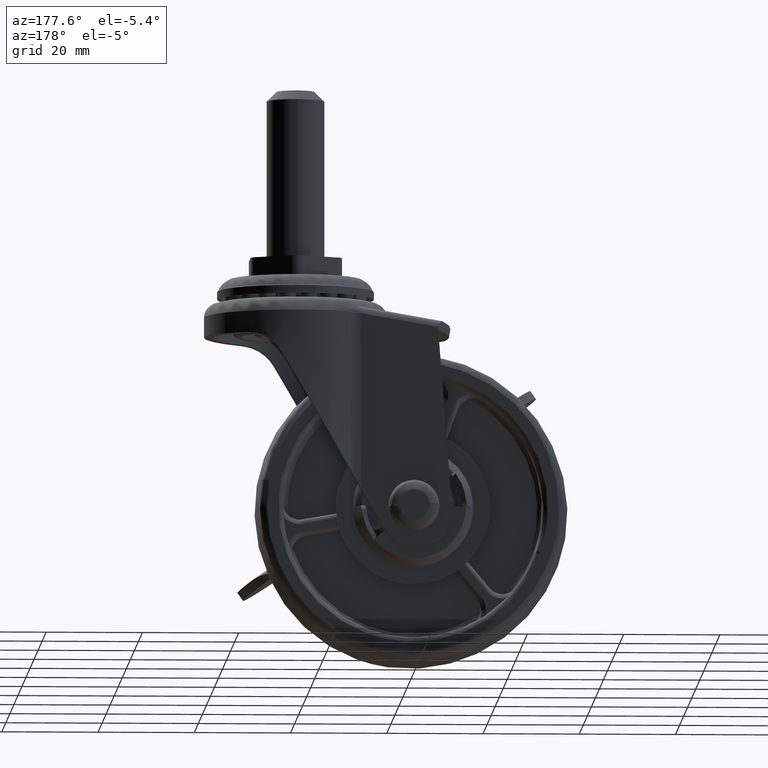
[diagram: clean part render]
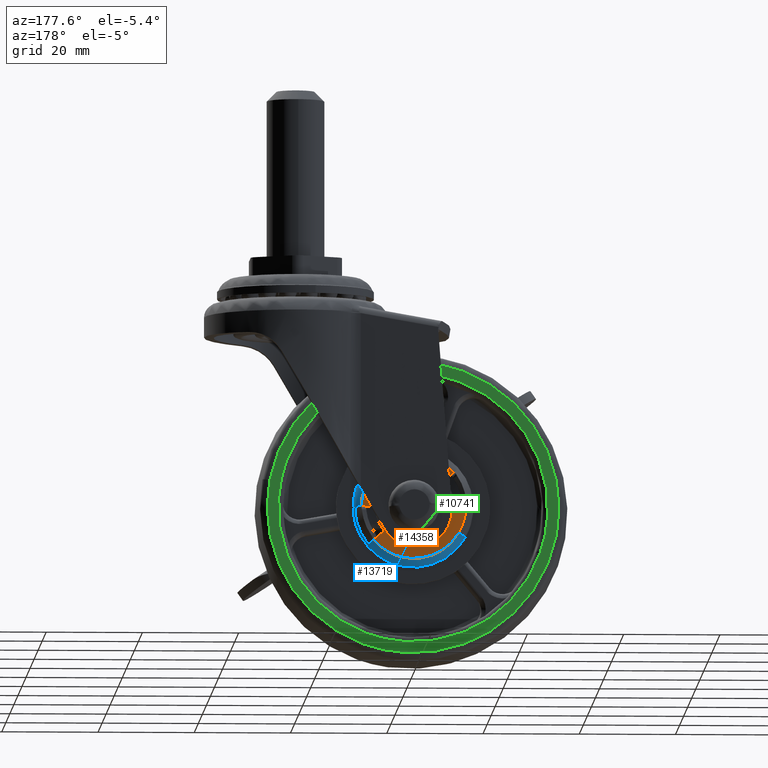
[diagram: same view with three faces highlighted in distinct colors, each labeled with its STEP entity id]
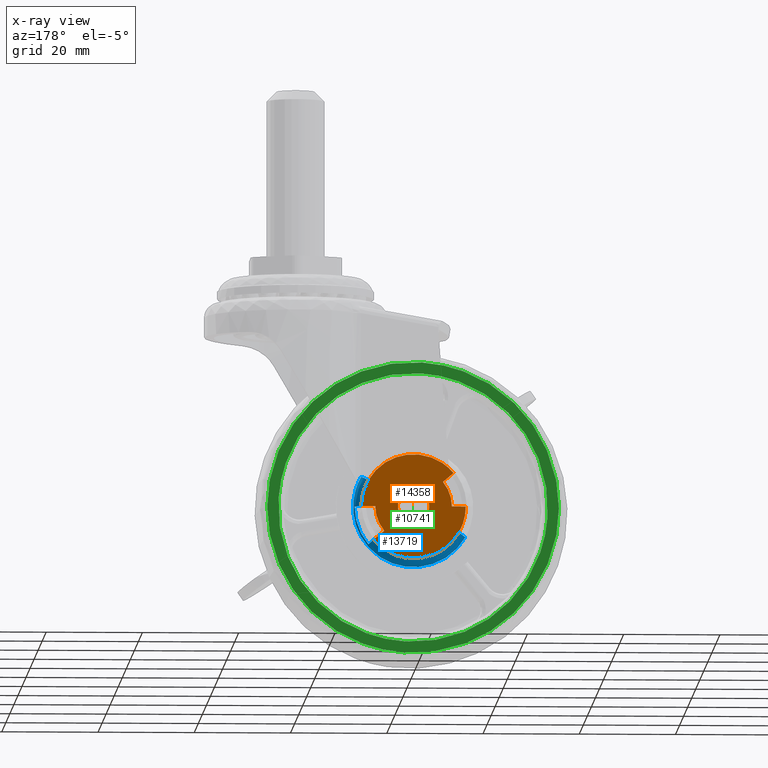
[diagram: x-ray of the same camera — body ghosted, the three highlighted faces saturated]
A machine part, auxiliary view with three faces highlighted in distinct colors.
The next image is the same camera in x-ray (body ghosted, the three faces saturated) — at least one of them is partly hidden behind the body in this view.
Their STEP definitions:

[orange] entity #14358 — the highlighted face is a freeform B-spline surface patch.
#13150=CARTESIAN_POINT('',(3.116164126514802,12.989464000000000,0.923049905433838));
#13151=VERTEX_POINT('',#13150);
#13152=CARTESIAN_POINT('',(-1.111565500497819,12.989464000000000,3.054001003503801));
#13153=VERTEX_POINT('',#13152);
#13154=CARTESIAN_POINT('',(3.116164126514802,12.989464000000000,0.923049905433838));
#13155=CARTESIAN_POINT('',(3.087962401191433,12.989464000000000,1.018257330559137));
#13156=CARTESIAN_POINT('',(3.054001003503799,12.989464000000000,1.111565500497820));
#13157=CARTESIAN_POINT('',(1.942435503005980,12.989463999999998,4.165566504001618));
#13158=CARTESIAN_POINT('',(-1.111565500497819,12.989464000000000,3.054001003503801));
#13166=(BOUNDED_CURVE()B_SPLINE_CURVE(2,(#13154,#13155,#13156,#13157,#13158),.UNSPECIFIED.,.F.,.U.)B_SPLINE_CURVE_WITH_KNOTS((3,2,3),(0.239332962223343,0.250000000000000,0.500000000000000),.UNSPECIFIED.)CURVE()GEOMETRIC_REPRESENTATION_ITEM()RATIONAL_B_SPLINE_CURVE((0.976072041633285,0.987502787881562,1.0,0.707106781186547,1.0))REPRESENTATION_ITEM(''));
#13167=EDGE_CURVE('',#13151,#13153,#13166,.T.);
#13176=CARTESIAN_POINT('',(-3.116164126514803,12.989464000000000,-0.923049905433835));
#13177=VERTEX_POINT('',#13176);
#13183=CARTESIAN_POINT('',(-1.111565500497819,12.989464000000000,3.054001003503801));
#13184=CARTESIAN_POINT('',(-3.984482772519240,12.989464000000000,2.008344593535519));
#13185=CARTESIAN_POINT('',(-3.116164126514803,12.989464000000000,-0.923049905433836));
#13193=(BOUNDED_CURVE()B_SPLINE_CURVE(2,(#13183,#13184,#13185),.UNSPECIFIED.,.F.,.U.)B_SPLINE_CURVE_WITH_KNOTS((3,3),(0.500000000000000,0.739332962223344),.UNSPECIFIED.)CURVE()GEOMETRIC_REPRESENTATION_ITEM()RATIONAL_B_SPLINE_CURVE((1.0,0.719603993304986,0.976072041633285))REPRESENTATION_ITEM(''));
#13194=EDGE_CURVE('',#13153,#13177,#13193,.T.);
#13217=CARTESIAN_POINT('',(1.111565500497817,12.989464000000000,-3.054001003503798));
#13218=VERTEX_POINT('',#13217);
#13219=CARTESIAN_POINT('',(1.111565500497817,12.989464000000000,-3.054001003503798));
#13220=CARTESIAN_POINT('',(3.984482772519237,12.989463999999998,-2.008344593535516));
#13221=CARTESIAN_POINT('',(3.116164126514802,12.989464000000000,0.923049905433838));
#13229=(BOUNDED_CURVE()B_SPLINE_CURVE(2,(#13219,#13220,#13221),.UNSPECIFIED.,.F.,.U.)B_SPLINE_CURVE_WITH_KNOTS((3,3),(0.0,0.239332962223343),.UNSPECIFIED.)CURVE()GEOMETRIC_REPRESENTATION_ITEM()RATIONAL_B_SPLINE_CURVE((1.0,0.719603993304986,0.976072041633285))REPRESENTATION_ITEM(''));
#13230=EDGE_CURVE('',#13218,#13151,#13229,.T.);
#13232=CARTESIAN_POINT('',(-3.116164126514803,12.989464000000000,-0.923049905433836));
#13233=CARTESIAN_POINT('',(-3.087962401191435,12.989464000000000,-1.018257330559133));
#13234=CARTESIAN_POINT('',(-3.054001003503800,12.989464000000000,-1.111565500497816));
#13235=CARTESIAN_POINT('',(-1.942435503005982,12.989463999999998,-4.165566504001616));
#13236=CARTESIAN_POINT('',(1.111565500497817,12.989464000000000,-3.054001003503798));
#13244=(BOUNDED_CURVE()B_SPLINE_CURVE(2,(#13232,#13233,#13234,#13235,#13236),.UNSPECIFIED.,.F.,.U.)B_SPLINE_CURVE_WITH_KNOTS((3,2,3),(0.739332962223344,0.750000000000000,1.0),.UNSPECIFIED.)CURVE()GEOMETRIC_REPRESENTATION_ITEM()RATIONAL_B_SPLINE_CURVE((0.976072041633285,0.987502787881562,1.0,0.707106781186547,1.0))REPRESENTATION_ITEM(''));
#13245=EDGE_CURVE('',#13177,#13218,#13244,.T.);
#13491=CARTESIAN_POINT('',(9.388791799524253,12.989464103182909,5.438114698972711));
#13492=VERTEX_POINT('',#13491);
#13506=CARTESIAN_POINT('',(-8.311582514143627,12.989464000000000,6.974245659113706));
#13507=VERTEX_POINT('',#13506);
#13508=CARTESIAN_POINT('',(9.388791799524253,12.989464103182906,5.438114698972711));
#13509=CARTESIAN_POINT('',(7.413778158593129,12.989464058105616,8.847934340635279));
#13510=CARTESIAN_POINT('',(3.710918377901026,12.989464043843791,10.195665051408650));
#13511=CARTESIAN_POINT('',(-3.428163201313411,12.989464016347133,12.794078186357378));
#13512=CARTESIAN_POINT('',(-8.311582514143627,12.989464000000000,6.974245659113706));
#13520=(BOUNDED_CURVE()B_SPLINE_CURVE(2,(#13508,#13509,#13510,#13511,#13512),.UNSPECIFIED.,.F.,.U.)B_SPLINE_CURVE_WITH_KNOTS((3,2,3),(0.215935883443890,0.500000000000000,1.0),.UNSPECIFIED.)CURVE()GEOMETRIC_REPRESENTATION_ITEM()RATIONAL_B_SPLINE_CURVE((0.911254817855908,0.897255170459948,1.0,0.819152044288992,1.0))REPRESENTATION_ITEM(''));
#13521=EDGE_CURVE('',#13492,#13507,#13520,.T.);
#13553=CARTESIAN_POINT('',(-10.850000295073020,12.989464000000000,-0.000000124868107));
#13554=VERTEX_POINT('',#13553);
#13568=CARTESIAN_POINT('',(-9.388791765926108,12.989464090905461,-5.438114679181441));
#13569=VERTEX_POINT('',#13568);
#13570=CARTESIAN_POINT('',(-10.850000295073020,12.989464000000000,-0.000000124868107));
#13571=CARTESIAN_POINT('',(-10.850000125985096,12.989464045452729,-2.915368980439508));
#13572=CARTESIAN_POINT('',(-9.388791765926108,12.989464090905454,-5.438114679181441));
#13580=(BOUNDED_CURVE()B_SPLINE_CURVE(2,(#13570,#13571,#13572),.UNSPECIFIED.,.F.,.U.)B_SPLINE_CURVE_WITH_KNOTS((3,3),(0.0,0.273006433631354),.UNSPECIFIED.)CURVE()GEOMETRIC_REPRESENTATION_ITEM()RATIONAL_B_SPLINE_CURVE((1.0,0.938306461054016,0.943983854290993))REPRESENTATION_ITEM(''));
#13581=EDGE_CURVE('',#13554,#13569,#13580,.T.);
#13626=CARTESIAN_POINT('',(3.710918699177899,12.989464206652089,-10.195664966333281));
#13627=VERTEX_POINT('',#13626);
#13628=CARTESIAN_POINT('',(-9.388791765926108,12.989464090905454,-5.438114679181441));
#13629=CARTESIAN_POINT('',(-8.187173203909181,12.989464106167015,-7.512683972295599));
#13630=CARTESIAN_POINT('',(-6.223304247915065,12.989464125395861,-8.887799787166928));
#13631=CARTESIAN_POINT('',(-1.596608520943066,12.989464170697252,-12.127446936401592));
#13632=CARTESIAN_POINT('',(3.710918699177899,12.989464206652089,-10.195664966333281));
#13640=(BOUNDED_CURVE()B_SPLINE_CURVE(2,(#13628,#13629,#13630,#13631,#13632),.UNSPECIFIED.,.F.,.U.)B_SPLINE_CURVE_WITH_KNOTS((3,2,3),(0.273006433631354,0.500000000000000,1.0),.UNSPECIFIED.)CURVE()GEOMETRIC_REPRESENTATION_ITEM()RATIONAL_B_SPLINE_CURVE((0.943983854290993,0.948704372124205,1.0,0.887010833178222,1.0))REPRESENTATION_ITEM(''));
#13641=EDGE_CURVE('',#13569,#13627,#13640,.T.);
#13643=CARTESIAN_POINT('',(8.311582514143609,12.989464000000000,-6.974245659113713));
#13644=VERTEX_POINT('',#13643);
#13645=CARTESIAN_POINT('',(3.710918699177899,12.989464206652089,-10.195664966333281));
#13646=CARTESIAN_POINT('',(6.442838958828066,12.989464000000000,-9.201327323847988));
#13647=CARTESIAN_POINT('',(8.311582514143609,12.989464000000000,-6.974245659113713));
#13655=(BOUNDED_CURVE()B_SPLINE_CURVE(2,(#13645,#13646,#13647),.UNSPECIFIED.,.F.,.U.)CURVE()GEOMETRIC_REPRESENTATION_ITEM()QUASI_UNIFORM_CURVE()RATIONAL_B_SPLINE_CURVE((1.0,0.965925826289069,1.0))REPRESENTATION_ITEM(''));
#13656=EDGE_CURVE('',#13627,#13644,#13655,.T.);
#13688=CARTESIAN_POINT('',(10.850000336423200,12.989464103326060,0.000000124868099));
#13689=VERTEX_POINT('',#13688);
#13703=CARTESIAN_POINT('',(10.850000336423200,12.989464103326060,0.000000124868099));
#13704=CARTESIAN_POINT('',(10.850000187283873,12.989464096967957,2.915368993233988));
#13705=CARTESIAN_POINT('',(9.388791799524253,12.989464103182906,5.438114698972711));
#13713=(BOUNDED_CURVE()B_SPLINE_CURVE(2,(#13703,#13704,#13705),.UNSPECIFIED.,.F.,.U.)B_SPLINE_CURVE_WITH_KNOTS((3,3),(0.0,0.215935883443890),.UNSPECIFIED.)CURVE()GEOMETRIC_REPRESENTATION_ITEM()RATIONAL_B_SPLINE_CURVE((1.0,0.921896873829044,0.911254817855908))REPRESENTATION_ITEM(''));
#13714=EDGE_CURVE('',#13689,#13492,#13713,.T.);
#14025=CARTESIAN_POINT('',(8.212485635630319,12.989464000000440,-6.891093506845846));
#14026=VERTEX_POINT('',#14025);
#14039=CARTESIAN_POINT('',(8.311582514143609,12.989464000000000,-6.974245659113713));
#14040=CARTESIAN_POINT('',(8.212485635630319,12.989464000000440,-6.891093506845846));
#14041=QUASI_UNIFORM_CURVE('',1,(#14039,#14040),.UNSPECIFIED.,.F.,.U.);
#14042=EDGE_CURVE('',#13644,#14026,#14041,.T.);
#14060=CARTESIAN_POINT('',(10.720638508760910,12.989464000000440,0.000000123379318));
#14061=VERTEX_POINT('',#14060);
#14067=CARTESIAN_POINT('',(10.720638508760910,12.989464000000440,0.000000123379318));
#14068=CARTESIAN_POINT('',(10.850000336423200,12.989464103326060,0.000000124868099));
#14069=QUASI_UNIFORM_CURVE('',1,(#14067,#14068),.UNSPECIFIED.,.F.,.U.);
#14070=EDGE_CURVE('',#14061,#13689,#14069,.T.);
#14237=CARTESIAN_POINT('',(-10.720638508761080,12.989464000000000,-0.000000123379341));
#14238=VERTEX_POINT('',#14237);
#14244=CARTESIAN_POINT('',(-10.850000295073020,12.989464000000000,-0.000000124868107));
#14245=CARTESIAN_POINT('',(-10.720638508761080,12.989464000000000,-0.000000123379341));
#14246=QUASI_UNIFORM_CURVE('',1,(#14244,#14245),.UNSPECIFIED.,.F.,.U.);
#14247=EDGE_CURVE('',#13554,#14238,#14246,.T.);
#14260=CARTESIAN_POINT('',(-8.212485635630458,12.989464000000000,6.891093506845937));
#14261=VERTEX_POINT('',#14260);
#14274=CARTESIAN_POINT('',(-8.311582514143627,12.989464000000000,6.974245659113706));
#14275=CARTESIAN_POINT('',(-8.212485635630458,12.989464000000000,6.891093506845937));
#14276=QUASI_UNIFORM_CURVE('',1,(#14274,#14275),.UNSPECIFIED.,.F.,.U.);
#14277=EDGE_CURVE('',#13507,#14261,#14276,.T.);
#14282=CARTESIAN_POINT('',(-15.295565719547181,12.989464000000000,7.131802467238265));
#14283=CARTESIAN_POINT('',(-7.132580814984252,12.989464000000000,-15.295813430301450));
#14284=CARTESIAN_POINT('',(7.132847886191947,12.989464000000000,15.295077713851811));
#14285=CARTESIAN_POINT('',(15.295832790754879,12.989464000000000,-7.132538183687909));
#14286=B_SPLINE_SURFACE_WITH_KNOTS('',1,1,((#14282,#14284),(#14283,#14285)),.UNSPECIFIED.,.F.,.F.,.U.,(2,2),(2,2),(0.0,23.866970437592851),(0.0,23.867819340931490),.UNSPECIFIED.);
#14287=CARTESIAN_POINT('',(7.959144733919222,12.989464000000440,0.000000091598475));
#14288=VERTEX_POINT('',#14287);
#14289=CARTESIAN_POINT('',(7.959144733919222,12.989464000000440,0.000000091598475));
#14290=CARTESIAN_POINT('',(10.720638508760910,12.989464000000440,0.000000123379318));
#14291=QUASI_UNIFORM_CURVE('',1,(#14289,#14290),.UNSPECIFIED.,.F.,.U.);
#14292=EDGE_CURVE('',#14288,#14061,#14291,.T.);
#14293=ORIENTED_EDGE('',*,*,#14292,.F.);
#14294=CARTESIAN_POINT('',(6.097058654276843,12.989464000000440,-5.116039548496663));
#14295=VERTEX_POINT('',#14294);
#14296=CARTESIAN_POINT('',(7.959144733919222,12.989464000000440,0.000000091598475));
#14297=CARTESIAN_POINT('',(7.959144767258339,12.989463999999998,-2.896891681764730));
#14298=CARTESIAN_POINT('',(6.097058654276842,12.989464000000000,-5.116039548496661));
#14306=(BOUNDED_CURVE()B_SPLINE_CURVE(2,(#14296,#14297,#14298),.UNSPECIFIED.,.F.,.U.)CURVE()GEOMETRIC_REPRESENTATION_ITEM()QUASI_UNIFORM_CURVE()RATIONAL_B_SPLINE_CURVE((1.0,0.939692620785908,1.0))REPRESENTATION_ITEM(''));
#14307=EDGE_CURVE('',#14288,#14295,#14306,.T.);
#14308=ORIENTED_EDGE('',*,*,#14307,.T.);
#14309=CARTESIAN_POINT('',(8.212485635630319,12.989464000000440,-6.891093506845846));
#14310=CARTESIAN_POINT('',(6.097058654276843,12.989464000000440,-5.116039548496663));
#14311=QUASI_UNIFORM_CURVE('',1,(#14309,#14310),.UNSPECIFIED.,.F.,.U.);
#14312=EDGE_CURVE('',#14026,#14295,#14311,.T.);
#14313=ORIENTED_EDGE('',*,*,#14312,.F.);
#14314=ORIENTED_EDGE('',*,*,#14042,.F.);
#14315=ORIENTED_EDGE('',*,*,#13656,.F.);
#14316=ORIENTED_EDGE('',*,*,#13641,.F.);
#14317=ORIENTED_EDGE('',*,*,#13581,.F.);
#14318=ORIENTED_EDGE('',*,*,#14247,.T.);
#14319=CARTESIAN_POINT('',(-7.959144733919223,12.989464000000000,-0.000000091598470));
#14320=VERTEX_POINT('',#14319);
#14321=CARTESIAN_POINT('',(-7.959144733919223,12.989464000000000,-0.000000091598470));
#14322=CARTESIAN_POINT('',(-10.720638508761080,12.989464000000000,-0.000000123379341));
#14323=QUASI_UNIFORM_CURVE('',1,(#14321,#14322),.UNSPECIFIED.,.F.,.U.);
#14324=EDGE_CURVE('',#14320,#14238,#14323,.T.);
#14325=ORIENTED_EDGE('',*,*,#14324,.F.);
#14326=CARTESIAN_POINT('',(-6.097058654276838,12.989464000000000,5.116039548496676));
#14327=VERTEX_POINT('',#14326);
#14328=CARTESIAN_POINT('',(-7.959144733919221,12.989464000000000,-0.000000091598467));
#14329=CARTESIAN_POINT('',(-7.959144767258335,12.989464000000000,2.896891681764742));
#14330=CARTESIAN_POINT('',(-6.097058654276832,12.989464000000000,5.116039548496674));
#14338=(BOUNDED_CURVE()B_SPLINE_CURVE(2,(#14328,#14329,#14330),.UNSPECIFIED.,.F.,.U.)CURVE()GEOMETRIC_REPRESENTATION_ITEM()QUASI_UNIFORM_CURVE()RATIONAL_B_SPLINE_CURVE((1.0,0.939692620785908,1.0))REPRESENTATION_ITEM(''));
#14339=EDGE_CURVE('',#14320,#14327,#14338,.T.);
#14340=ORIENTED_EDGE('',*,*,#14339,.T.);
#14341=CARTESIAN_POINT('',(-8.212485635630458,12.989464000000000,6.891093506845937));
#14342=CARTESIAN_POINT('',(-6.097058654276838,12.989464000000000,5.116039548496676));
#14343=QUASI_UNIFORM_CURVE('',1,(#14341,#14342),.UNSPECIFIED.,.F.,.U.);
#14344=EDGE_CURVE('',#14261,#14327,#14343,.T.);
#14345=ORIENTED_EDGE('',*,*,#14344,.F.);
#14346=ORIENTED_EDGE('',*,*,#14277,.F.);
#14347=ORIENTED_EDGE('',*,*,#13521,.F.);
#14348=ORIENTED_EDGE('',*,*,#13714,.F.);
#14349=ORIENTED_EDGE('',*,*,#14070,.F.);
#14350=EDGE_LOOP('',(#14293,#14308,#14313,#14314,#14315,#14316,#14317,#14318,#14325,#14340,#14345,#14346,#14347,#14348,#14349));
#14351=FACE_OUTER_BOUND('',#14350,.T.);
#14352=ORIENTED_EDGE('',*,*,#13194,.T.);
#14353=ORIENTED_EDGE('',*,*,#13245,.T.);
#14354=ORIENTED_EDGE('',*,*,#13230,.T.);
#14355=ORIENTED_EDGE('',*,*,#13167,.T.);
#14356=EDGE_LOOP('',(#14352,#14353,#14354,#14355));
#14357=FACE_BOUND('',#14356,.T.);
#14358=ADVANCED_FACE('',(#14351,#14357),#14286,.F.);

[blue] entity #13719 — the highlighted face is a freeform B-spline surface patch.
#10993=CARTESIAN_POINT('',(-10.816580438540610,10.989463999982011,-6.265109114138140));
#10994=VERTEX_POINT('',#10993);
#11010=CARTESIAN_POINT('',(4.275251989621109,10.989464000000000,-11.746157883351930));
#11011=VERTEX_POINT('',#11010);
#11012=CARTESIAN_POINT('',(-10.816580438540603,10.989463999982013,-6.265109114138140));
#11013=CARTESIAN_POINT('',(-5.566978791533274,10.989463999991010,-15.328437054746528));
#11014=CARTESIAN_POINT('',(4.275251989621109,10.989464000000000,-11.746157883351930));
#11022=(BOUNDED_CURVE()B_SPLINE_CURVE(2,(#11012,#11013,#11014),.UNSPECIFIED.,.F.,.U.)B_SPLINE_CURVE_WITH_KNOTS((3,3),(0.780081746790925,1.0),.UNSPECIFIED.)CURVE()GEOMETRIC_REPRESENTATION_ITEM()RATIONAL_B_SPLINE_CURVE((0.937995440888451,0.742349739767049,1.0))REPRESENTATION_ITEM(''));
#11023=EDGE_CURVE('',#10994,#11011,#11022,.T.);
#11025=CARTESIAN_POINT('',(10.816580438540610,10.989463999982011,6.265109114138140));
#11026=VERTEX_POINT('',#11025);
#11027=CARTESIAN_POINT('',(4.275251989621109,10.989464000000000,-11.746157883351930));
#11028=CARTESIAN_POINT('',(16.021409872974274,10.989463999992466,-7.470905893730095));
#11029=CARTESIAN_POINT('',(11.746157883354670,10.989463999983469,4.275251989622696));
#11030=CARTESIAN_POINT('',(11.369114081787842,10.989463999982677,5.311171283478768));
#11031=CARTESIAN_POINT('',(10.816580438540603,10.989463999982013,6.265109114138140));
#11039=(BOUNDED_CURVE()B_SPLINE_CURVE(2,(#11027,#11028,#11029,#11030,#11031),.UNSPECIFIED.,.F.,.U.)B_SPLINE_CURVE_WITH_KNOTS((3,2,3),(0.0,0.250000000000000,0.280081746790925),.UNSPECIFIED.)CURVE()GEOMETRIC_REPRESENTATION_ITEM()RATIONAL_B_SPLINE_CURVE((1.0,0.707106781186547,1.0,0.964757041419499,0.937995440888451))REPRESENTATION_ITEM(''));
#11040=EDGE_CURVE('',#11011,#11026,#11039,.T.);
#13491=CARTESIAN_POINT('',(9.388791799524253,12.989464103182909,5.438114698972711));
#13492=VERTEX_POINT('',#13491);
#13493=CARTESIAN_POINT('',(9.388791799524253,12.989464103182904,5.438114698972711));
#13494=CARTESIAN_POINT('',(10.575781514382150,12.440511959754879,6.125635133216875));
#13495=CARTESIAN_POINT('',(10.816580438540607,10.989463999982011,6.265109114138140));
#13503=(BOUNDED_CURVE()B_SPLINE_CURVE(2,(#13493,#13494,#13495),.UNSPECIFIED.,.F.,.U.)B_SPLINE_CURVE_WITH_KNOTS((3,3),(-1.626796212198691,-0.369664993205128),.UNSPECIFIED.)CURVE()GEOMETRIC_REPRESENTATION_ITEM()RATIONAL_B_SPLINE_CURVE((0.913901875656768,0.802158581560929,0.914532761034838))REPRESENTATION_ITEM(''));
#13504=EDGE_CURVE('',#13492,#11026,#13503,.T.);
#13568=CARTESIAN_POINT('',(-9.388791765926108,12.989464090905461,-5.438114679181441));
#13569=VERTEX_POINT('',#13568);
#13583=CARTESIAN_POINT('',(-9.388791765926108,12.989464090905457,-5.438114679181441));
#13584=CARTESIAN_POINT('',(-10.575781506943596,12.440511967919312,-6.125635128742980));
#13585=CARTESIAN_POINT('',(-10.816580438540603,10.989463999982014,-6.265109114138140));
#13593=(BOUNDED_CURVE()B_SPLINE_CURVE(2,(#13583,#13584,#13585),.UNSPECIFIED.,.F.,.U.)B_SPLINE_CURVE_WITH_KNOTS((3,3),(-1.626796227534340,-0.369664993205129),.UNSPECIFIED.)CURVE()GEOMETRIC_REPRESENTATION_ITEM()RATIONAL_B_SPLINE_CURVE((0.913901878383064,0.802158580190085,0.914532761034837))REPRESENTATION_ITEM(''));
#13594=EDGE_CURVE('',#13569,#10994,#13593,.T.);
#13600=CARTESIAN_POINT('',(-9.284415106343891,13.034433249230569,-5.377658311859018));
#13601=CARTESIAN_POINT('',(-3.906756794484871,13.034433249230570,-14.662073418202908));
#13602=CARTESIAN_POINT('',(5.377658311859019,13.034433249230569,-9.284415106343889));
#13603=CARTESIAN_POINT('',(14.662073418202910,13.034433249230570,-3.906756794484869));
#13604=CARTESIAN_POINT('',(9.284415106343889,13.034433249230569,5.377658311859020));
#13605=CARTESIAN_POINT('',(-10.633147780495900,12.495275239703895,-6.158862447235680));
#13606=CARTESIAN_POINT('',(-4.474285333260220,12.495275239703899,-16.792010227731581));
#13607=CARTESIAN_POINT('',(6.158862447235680,12.495275239703895,-10.633147780495900));
#13608=CARTESIAN_POINT('',(16.792010227731581,12.495275239703899,-4.474285333260219));
#13609=CARTESIAN_POINT('',(10.633147780495900,12.495275239703895,6.158862447235682));
#13610=CARTESIAN_POINT('',(-10.834937861321203,10.862586957574164,-6.275741980622701));
#13611=CARTESIAN_POINT('',(-4.559195880698502,10.862586957574168,-17.110679841943913));
#13612=CARTESIAN_POINT('',(6.275741980622703,10.862586957574164,-10.834937861321203));
#13613=CARTESIAN_POINT('',(17.110679841943913,10.862586957574168,-4.559195880698495));
#13614=CARTESIAN_POINT('',(10.834937861321203,10.862586957574164,6.275741980622704));
#13622=(BOUNDED_SURFACE()B_SPLINE_SURFACE(2,2,((#13600,#13605,#13610),(#13601,#13606,#13611),(#13602,#13607,#13612),(#13603,#13608,#13613),(#13604,#13609,#13614)),.UNSPECIFIED.,.F.,.F.,.U.)B_SPLINE_SURFACE_WITH_KNOTS((3,2,3),(3,3),(0.0,20.745827680739339,41.491655361478692),(0.0,3.037985161887510),.UNSPECIFIED.)GEOMETRIC_REPRESENTATION_ITEM()RATIONAL_B_SPLINE_SURFACE(((0.925624211212025,0.790404736885144,0.926318114793980),(0.654515156578472,0.558900549333454,0.655005820506762),(0.925624211212025,0.790404736885144,0.926318114793980),(0.654515156578472,0.558900549333454,0.655005820506762),(0.925624211212025,0.790404736885144,0.926318114793980)))REPRESENTATION_ITEM('')SURFACE());
#13623=ORIENTED_EDGE('',*,*,#11040,.F.);
#13624=ORIENTED_EDGE('',*,*,#11023,.F.);
#13625=ORIENTED_EDGE('',*,*,#13594,.F.);
#13626=CARTESIAN_POINT('',(3.710918699177899,12.989464206652089,-10.195664966333281));
#13627=VERTEX_POINT('',#13626);
#13628=CARTESIAN_POINT('',(-9.388791765926108,12.989464090905454,-5.438114679181441));
#13629=CARTESIAN_POINT('',(-8.187173203909181,12.989464106167015,-7.512683972295599));
#13630=CARTESIAN_POINT('',(-6.223304247915065,12.989464125395861,-8.887799787166928));
#13631=CARTESIAN_POINT('',(-1.596608520943066,12.989464170697252,-12.127446936401592));
#13632=CARTESIAN_POINT('',(3.710918699177899,12.989464206652089,-10.195664966333281));
#13640=(BOUNDED_CURVE()B_SPLINE_CURVE(2,(#13628,#13629,#13630,#13631,#13632),.UNSPECIFIED.,.F.,.U.)B_SPLINE_CURVE_WITH_KNOTS((3,2,3),(0.273006433631354,0.500000000000000,1.0),.UNSPECIFIED.)CURVE()GEOMETRIC_REPRESENTATION_ITEM()RATIONAL_B_SPLINE_CURVE((0.943983854290993,0.948704372124205,1.0,0.887010833178222,1.0))REPRESENTATION_ITEM(''));
#13641=EDGE_CURVE('',#13569,#13627,#13640,.T.);
#13642=ORIENTED_EDGE('',*,*,#13641,.T.);
#13643=CARTESIAN_POINT('',(8.311582514143609,12.989464000000000,-6.974245659113713));
#13644=VERTEX_POINT('',#13643);
#13645=CARTESIAN_POINT('',(3.710918699177899,12.989464206652089,-10.195664966333281));
#13646=CARTESIAN_POINT('',(6.442838958828066,12.989464000000000,-9.201327323847988));
#13647=CARTESIAN_POINT('',(8.311582514143609,12.989464000000000,-6.974245659113713));
#13655=(BOUNDED_CURVE()B_SPLINE_CURVE(2,(#13645,#13646,#13647),.UNSPECIFIED.,.F.,.U.)CURVE()GEOMETRIC_REPRESENTATION_ITEM()QUASI_UNIFORM_CURVE()RATIONAL_B_SPLINE_CURVE((1.0,0.965925826289069,1.0))REPRESENTATION_ITEM(''));
#13656=EDGE_CURVE('',#13627,#13644,#13655,.T.);
#13657=ORIENTED_EDGE('',*,*,#13656,.T.);
#13658=CARTESIAN_POINT('',(9.342844141528417,11.814385800616099,-7.839576890074863));
#13659=VERTEX_POINT('',#13658);
#13660=CARTESIAN_POINT('',(8.311582514143609,12.989464000000000,-6.974245659113713));
#13661=CARTESIAN_POINT('',(8.984882688161054,12.637723625945927,-7.539211573598820));
#13662=CARTESIAN_POINT('',(9.342844141528417,11.814385800616099,-7.839576890074863));
#13670=(BOUNDED_CURVE()B_SPLINE_CURVE(2,(#13660,#13661,#13662),.UNSPECIFIED.,.F.,.U.)CURVE()GEOMETRIC_REPRESENTATION_ITEM()QUASI_UNIFORM_CURVE()RATIONAL_B_SPLINE_CURVE((1.0,0.943766159530008,1.0))REPRESENTATION_ITEM(''));
#13671=EDGE_CURVE('',#13644,#13659,#13670,.T.);
#13672=ORIENTED_EDGE('',*,*,#13671,.T.);
#13673=CARTESIAN_POINT('',(12.196216727670141,11.814385800613040,0.000000140361026));
#13674=VERTEX_POINT('',#13673);
#13675=CARTESIAN_POINT('',(9.342844141528417,11.814385800616099,-7.839576890074863));
#13676=CARTESIAN_POINT('',(12.196216778757380,11.814385800613042,-4.439059719170389));
#13677=CARTESIAN_POINT('',(12.196216727670141,11.814385800613040,0.000000140361026));
#13685=(BOUNDED_CURVE()B_SPLINE_CURVE(2,(#13675,#13676,#13677),.UNSPECIFIED.,.F.,.U.)CURVE()GEOMETRIC_REPRESENTATION_ITEM()QUASI_UNIFORM_CURVE()RATIONAL_B_SPLINE_CURVE((1.0,0.939692620785910,1.0))REPRESENTATION_ITEM(''));
#13686=EDGE_CURVE('',#13659,#13674,#13685,.T.);
#13687=ORIENTED_EDGE('',*,*,#13686,.T.);
#13688=CARTESIAN_POINT('',(10.850000336423200,12.989464103326060,0.000000124868099));
#13689=VERTEX_POINT('',#13688);
#13690=CARTESIAN_POINT('',(12.196216727670141,11.814385800613040,0.000000140361029));
#13691=CARTESIAN_POINT('',(11.728931241657438,12.637723625945064,0.000000134983239));
#13692=CARTESIAN_POINT('',(10.850000336423200,12.989464103326050,0.000000124868001));
#13700=(BOUNDED_CURVE()B_SPLINE_CURVE(2,(#13690,#13691,#13692),.UNSPECIFIED.,.F.,.U.)CURVE()GEOMETRIC_REPRESENTATION_ITEM()QUASI_UNIFORM_CURVE()RATIONAL_B_SPLINE_CURVE((1.0,0.943766159529830,1.0))REPRESENTATION_ITEM(''));
#13701=EDGE_CURVE('',#13674,#13689,#13700,.T.);
#13702=ORIENTED_EDGE('',*,*,#13701,.T.);
#13703=CARTESIAN_POINT('',(10.850000336423200,12.989464103326060,0.000000124868099));
#13704=CARTESIAN_POINT('',(10.850000187283873,12.989464096967957,2.915368993233988));
#13705=CARTESIAN_POINT('',(9.388791799524253,12.989464103182906,5.438114698972711));
#13713=(BOUNDED_CURVE()B_SPLINE_CURVE(2,(#13703,#13704,#13705),.UNSPECIFIED.,.F.,.U.)B_SPLINE_CURVE_WITH_KNOTS((3,3),(0.0,0.215935883443890),.UNSPECIFIED.)CURVE()GEOMETRIC_REPRESENTATION_ITEM()RATIONAL_B_SPLINE_CURVE((1.0,0.921896873829044,0.911254817855908))REPRESENTATION_ITEM(''));
#13714=EDGE_CURVE('',#13689,#13492,#13713,.T.);
#13715=ORIENTED_EDGE('',*,*,#13714,.T.);
#13716=ORIENTED_EDGE('',*,*,#13504,.T.);
#13717=EDGE_LOOP('',(#13623,#13624,#13625,#13642,#13657,#13672,#13687,#13702,#13715,#13716));
#13718=FACE_OUTER_BOUND('',#13717,.T.);
#13719=ADVANCED_FACE('',(#13718),#13622,.T.);

[green] entity #10741 — the highlighted face is a freeform B-spline surface patch.
#10462=CARTESIAN_POINT('',(29.782528582550629,10.500000000000000,5.595172231472978));
#10463=VERTEX_POINT('',#10462);
#10477=CARTESIAN_POINT('',(-10.364423811665890,10.500000000000000,28.476019368530629));
#10478=VERTEX_POINT('',#10477);
#10479=CARTESIAN_POINT('',(29.782528582550629,10.499999999999998,5.595172231472978));
#10480=CARTESIAN_POINT('',(29.324487917453403,10.499999999999996,8.033275763895940));
#10481=CARTESIAN_POINT('',(28.476019384202100,10.500000000000000,10.364423814610049));
#10482=CARTESIAN_POINT('',(18.111595564059012,10.499999999999998,38.840443181548096));
#10483=CARTESIAN_POINT('',(-10.364423811665890,10.500000000000000,28.476019368530629));
#10491=(BOUNDED_CURVE()B_SPLINE_CURVE(2,(#10479,#10480,#10481,#10482,#10483),.UNSPECIFIED.,.F.,.U.)B_SPLINE_CURVE_WITH_KNOTS((3,2,3),(0.222006108797455,0.250000000000000,0.500000000000000),.UNSPECIFIED.)CURVE()GEOMETRIC_REPRESENTATION_ITEM()RATIONAL_B_SPLINE_CURVE((0.941751131920110,0.967203116394292,1.0,0.707106781186547,1.0))REPRESENTATION_ITEM(''));
#10492=EDGE_CURVE('',#10463,#10478,#10491,.T.);
#10494=CARTESIAN_POINT('',(-29.782528582550629,10.500000000000000,-5.595172231472980));
#10495=VERTEX_POINT('',#10494);
#10496=CARTESIAN_POINT('',(-10.364423811665890,10.500000000000000,28.476019368530629));
#10497=CARTESIAN_POINT('',(-34.530938446279812,10.499999999999998,19.680127062099086));
#10498=CARTESIAN_POINT('',(-29.782528582550629,10.500000000000000,-5.595172231472980));
#10506=(BOUNDED_CURVE()B_SPLINE_CURVE(2,(#10496,#10497,#10498),.UNSPECIFIED.,.F.,.U.)B_SPLINE_CURVE_WITH_KNOTS((3,3),(0.500000000000000,0.722006108797455),.UNSPECIFIED.)CURVE()GEOMETRIC_REPRESENTATION_ITEM()RATIONAL_B_SPLINE_CURVE((1.0,0.739903664792256,0.941751131920110))REPRESENTATION_ITEM(''));
#10507=EDGE_CURVE('',#10478,#10495,#10506,.T.);
#10552=CARTESIAN_POINT('',(10.364423811665890,10.500000000000000,-28.476019368530629));
#10553=VERTEX_POINT('',#10552);
#10554=CARTESIAN_POINT('',(-29.782528582550629,10.500000000000000,-5.595172231472980));
#10555=CARTESIAN_POINT('',(-29.324487917453403,10.499999999999996,-8.033275763895942));
#10556=CARTESIAN_POINT('',(-28.476019384202100,10.500000000000000,-10.364423814610049));
#10557=CARTESIAN_POINT('',(-18.111595564059012,10.499999999999998,-38.840443181548096));
#10558=CARTESIAN_POINT('',(10.364423811665890,10.500000000000000,-28.476019368530629));
#10566=(BOUNDED_CURVE()B_SPLINE_CURVE(2,(#10554,#10555,#10556,#10557,#10558),.UNSPECIFIED.,.F.,.U.)B_SPLINE_CURVE_WITH_KNOTS((3,2,3),(0.722006108797455,0.750000000000000,1.0),.UNSPECIFIED.)CURVE()GEOMETRIC_REPRESENTATION_ITEM()RATIONAL_B_SPLINE_CURVE((0.941751131920110,0.967203116394292,1.0,0.707106781186547,1.0))REPRESENTATION_ITEM(''));
#10567=EDGE_CURVE('',#10495,#10553,#10566,.T.);
#10569=CARTESIAN_POINT('',(10.364423811665890,10.500000000000000,-28.476019368530629));
#10570=CARTESIAN_POINT('',(34.530938446279812,10.499999999999998,-19.680127062099086));
#10571=CARTESIAN_POINT('',(29.782528582550629,10.499999999999998,5.595172231472978));
#10579=(BOUNDED_CURVE()B_SPLINE_CURVE(2,(#10569,#10570,#10571),.UNSPECIFIED.,.F.,.U.)B_SPLINE_CURVE_WITH_KNOTS((3,3),(0.0,0.222006108797455),.UNSPECIFIED.)CURVE()GEOMETRIC_REPRESENTATION_ITEM()RATIONAL_B_SPLINE_CURVE((1.0,0.739903664792256,0.941751131920110))REPRESENTATION_ITEM(''));
#10580=EDGE_CURVE('',#10553,#10463,#10579,.T.);
#10664=CARTESIAN_POINT('',(-42.719021350879864,10.500000000000000,19.921519666415190));
#10665=CARTESIAN_POINT('',(-19.919361374339260,10.500000000000000,-42.720029047283013));
#10666=CARTESIAN_POINT('',(19.919363457825849,10.500000000000000,42.720028075673227));
#10667=CARTESIAN_POINT('',(42.719023434366427,10.500000000000000,-19.921520638024969));
#10668=B_SPLINE_SURFACE_WITH_KNOTS('',1,1,((#10664,#10666),(#10665,#10667)),.UNSPECIFIED.,.F.,.F.,.U.,(2,2),(2,2),(0.0,66.661744081272332),(0.0,66.658377123889593),.UNSPECIFIED.);
#10669=ORIENTED_EDGE('',*,*,#10567,.F.);
#10670=ORIENTED_EDGE('',*,*,#10507,.F.);
#10671=ORIENTED_EDGE('',*,*,#10492,.F.);
#10672=ORIENTED_EDGE('',*,*,#10580,.F.);
#10673=EDGE_LOOP('',(#10669,#10670,#10671,#10672));
#10674=FACE_OUTER_BOUND('',#10673,.T.);
#10675=CARTESIAN_POINT('',(9.576564311981201,10.500000000000000,-26.311393260955811));
#10676=VERTEX_POINT('',#10675);
#10677=CARTESIAN_POINT('',(26.429655306631862,10.500000000000000,9.245178167001873));
#10678=VERTEX_POINT('',#10677);
#10679=CARTESIAN_POINT('',(9.576564311981201,10.500000000000000,-26.311393260955811));
#10680=CARTESIAN_POINT('',(35.559379046067690,10.499999999999998,-16.854421756610279));
#10681=CARTESIAN_POINT('',(26.429655306631858,10.500000000000000,9.245178167001873));
#10689=(BOUNDED_CURVE()B_SPLINE_CURVE(2,(#10679,#10680,#10681),.UNSPECIFIED.,.F.,.U.)B_SPLINE_CURVE_WITH_KNOTS((3,3),(0.0,0.247784295919515),.UNSPECIFIED.)CURVE()GEOMETRIC_REPRESENTATION_ITEM()RATIONAL_B_SPLINE_CURVE((1.0,0.709702639986833,0.994854295638918))REPRESENTATION_ITEM(''));
#10690=EDGE_CURVE('',#10676,#10678,#10689,.T.);
#10691=ORIENTED_EDGE('',*,*,#10690,.T.);
#10692=CARTESIAN_POINT('',(-9.576564311981201,10.500000000000000,26.311393260955811));
#10693=VERTEX_POINT('',#10692);
#10694=CARTESIAN_POINT('',(26.429655306631858,10.500000000000000,9.245178167001873));
#10695=CARTESIAN_POINT('',(26.371565374523541,10.499999999999998,9.411242774441119));
#10696=CARTESIAN_POINT('',(26.311393254470030,10.500000000000000,9.576564309712452));
#10697=CARTESIAN_POINT('',(16.734828945752099,10.500000000000000,35.887957571809771));
#10698=CARTESIAN_POINT('',(-9.576564311981201,10.500000000000000,26.311393260955811));
#10706=(BOUNDED_CURVE()B_SPLINE_CURVE(2,(#10694,#10695,#10696,#10697,#10698),.UNSPECIFIED.,.F.,.U.)B_SPLINE_CURVE_WITH_KNOTS((3,2,3),(0.247784295919515,0.250000000000000,0.500000000000000),.UNSPECIFIED.)CURVE()GEOMETRIC_REPRESENTATION_ITEM()RATIONAL_B_SPLINE_CURVE((0.994854295638918,0.997404141199714,1.0,0.707106781186547,1.0))REPRESENTATION_ITEM(''));
#10707=EDGE_CURVE('',#10678,#10693,#10706,.T.);
#10708=ORIENTED_EDGE('',*,*,#10707,.T.);
#10709=CARTESIAN_POINT('',(-26.429655306631862,10.500000000000000,-9.245178167001875));
#10710=VERTEX_POINT('',#10709);
#10711=CARTESIAN_POINT('',(-9.576564311981201,10.500000000000000,26.311393260955811));
#10712=CARTESIAN_POINT('',(-35.559379046067690,10.500000000000000,16.854421756610265));
#10713=CARTESIAN_POINT('',(-26.429655306631858,10.500000000000000,-9.245178167001875));
#10721=(BOUNDED_CURVE()B_SPLINE_CURVE(2,(#10711,#10712,#10713),.UNSPECIFIED.,.F.,.U.)B_SPLINE_CURVE_WITH_KNOTS((3,3),(0.500000000000000,0.747784295919515),.UNSPECIFIED.)CURVE()GEOMETRIC_REPRESENTATION_ITEM()RATIONAL_B_SPLINE_CURVE((1.0,0.709702639986833,0.994854295638918))REPRESENTATION_ITEM(''));
#10722=EDGE_CURVE('',#10693,#10710,#10721,.T.);
#10723=ORIENTED_EDGE('',*,*,#10722,.T.);
#10724=CARTESIAN_POINT('',(-26.429655306631858,10.500000000000000,-9.245178167001875));
#10725=CARTESIAN_POINT('',(-26.371565374523541,10.499999999999998,-9.411242774441119));
#10726=CARTESIAN_POINT('',(-26.311393254470030,10.500000000000000,-9.576564309712451));
#10727=CARTESIAN_POINT('',(-16.734828945752099,10.499999999999998,-35.887957571809771));
#10728=CARTESIAN_POINT('',(9.576564311981201,10.500000000000000,-26.311393260955811));
#10736=(BOUNDED_CURVE()B_SPLINE_CURVE(2,(#10724,#10725,#10726,#10727,#10728),.UNSPECIFIED.,.F.,.U.)B_SPLINE_CURVE_WITH_KNOTS((3,2,3),(0.747784295919515,0.750000000000000,1.0),.UNSPECIFIED.)CURVE()GEOMETRIC_REPRESENTATION_ITEM()RATIONAL_B_SPLINE_CURVE((0.994854295638918,0.997404141199714,1.0,0.707106781186547,1.0))REPRESENTATION_ITEM(''));
#10737=EDGE_CURVE('',#10710,#10676,#10736,.T.);
#10738=ORIENTED_EDGE('',*,*,#10737,.T.);
#10739=EDGE_LOOP('',(#10691,#10708,#10723,#10738));
#10740=FACE_BOUND('',#10739,.T.);
#10741=ADVANCED_FACE('',(#10674,#10740),#10668,.F.);